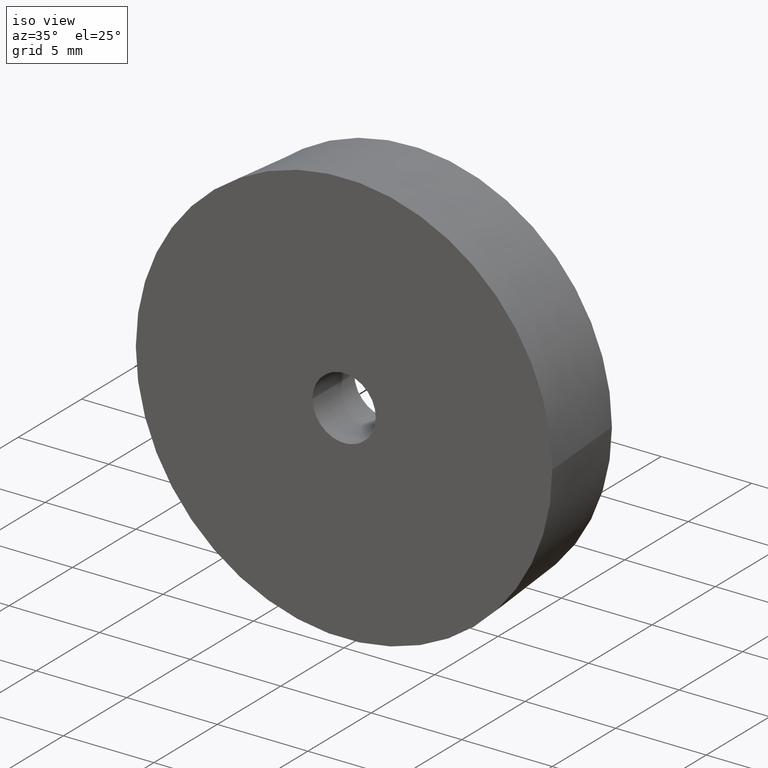
[diagram: clean part render]
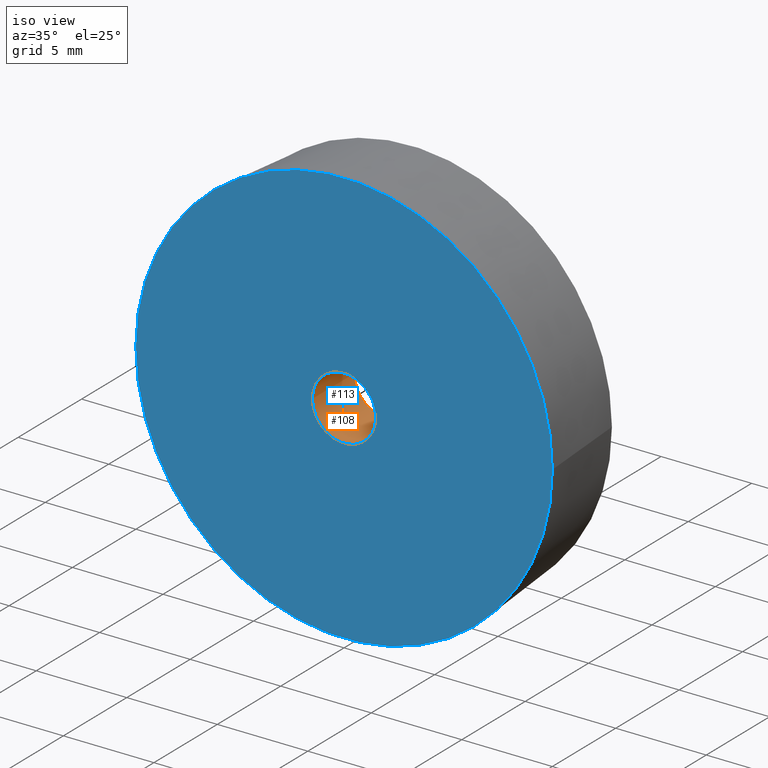
[diagram: same view with the hole feature highlighted: cylindrical wall and planar end face, labeled with their STEP entity ids]
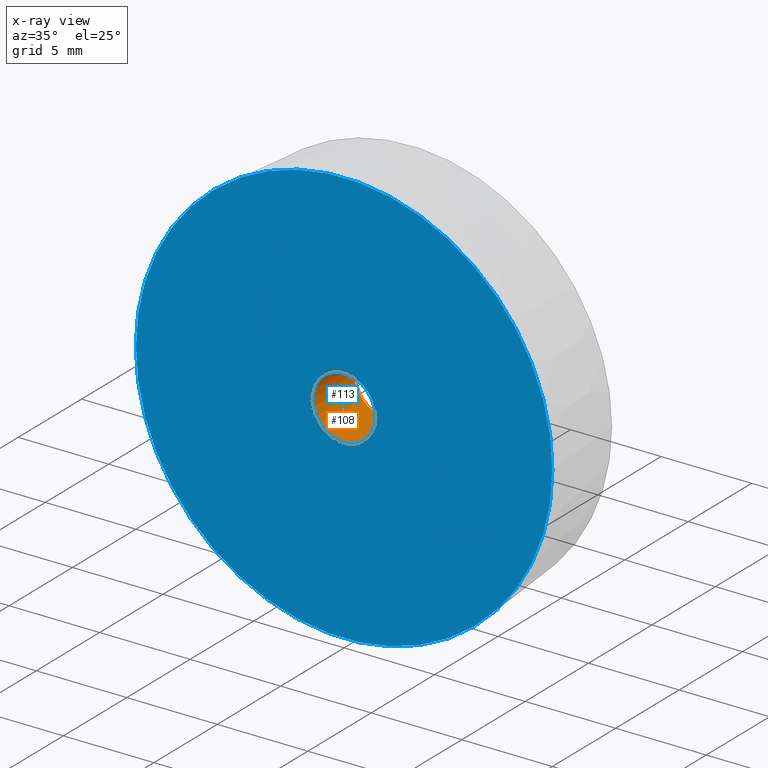
[diagram: x-ray of the same camera — body ghosted, the hole faces saturated]
A machine part, iso view. The highlighted faces form one hole feature of diameter 3.5 mm: the cylindrical wall (entity #108, orange) and its adjacent planar end face (entity #113, blue) — they share a circular edge in the B-rep.
The next image is the same camera in x-ray (body ghosted, the hole faces saturated) — the bore reads through the body.
Wall:
#15=CYLINDRICAL_SURFACE('',#123,1.75);
#25=FACE_BOUND('',#47,.T.);
#34=FACE_OUTER_BOUND('',#46,.T.);
#46=EDGE_LOOP('',(#91));
#47=EDGE_LOOP('',(#92));
#62=CIRCLE('',#124,1.75);
#63=CIRCLE('',#125,1.75);
#71=VERTEX_POINT('',#185);
#72=VERTEX_POINT('',#187);
#80=EDGE_CURVE('',#71,#71,#62,.T.);
#81=EDGE_CURVE('',#72,#72,#63,.T.);
#91=ORIENTED_EDGE('',*,*,#80,.F.);
#92=ORIENTED_EDGE('',*,*,#81,.F.);
#108=ADVANCED_FACE('',(#34,#25),#15,.F.);
#123=AXIS2_PLACEMENT_3D('',#184,#150,#151);
#124=AXIS2_PLACEMENT_3D('',#186,#152,#153);
#125=AXIS2_PLACEMENT_3D('',#188,#154,#155);
#150=DIRECTION('center_axis',(0.,1.,0.));
#151=DIRECTION('ref_axis',(-1.,0.,0.));
#152=DIRECTION('center_axis',(0.,1.,0.));
#153=DIRECTION('ref_axis',(-1.,0.,0.));
#154=DIRECTION('center_axis',(0.,-1.,0.));
#155=DIRECTION('ref_axis',(-1.,0.,0.));
#184=CARTESIAN_POINT('Origin',(0.,-29.8314050411388,0.));
#185=CARTESIAN_POINT('',(1.75,0.,-2.14313189850787E-16));
#186=CARTESIAN_POINT('Origin',(0.,0.,0.));
#187=CARTESIAN_POINT('',(-1.75,3.3,0.));
#188=CARTESIAN_POINT('Origin',(0.,3.3,0.));
End face:
#21=PLANE('',#133);
#30=FACE_BOUND('',#57,.T.);
#39=FACE_OUTER_BOUND('',#56,.T.);
#56=EDGE_LOOP('',(#101));
#57=EDGE_LOOP('',(#102));
#61=CIRCLE('',#122,11.5);
#62=CIRCLE('',#124,1.75);
#70=VERTEX_POINT('',#182);
#71=VERTEX_POINT('',#185);
#79=EDGE_CURVE('',#70,#70,#61,.T.);
#80=EDGE_CURVE('',#71,#71,#62,.T.);
#101=ORIENTED_EDGE('',*,*,#79,.F.);
#102=ORIENTED_EDGE('',*,*,#80,.T.);
#113=ADVANCED_FACE('',(#39,#30),#21,.F.);
#122=AXIS2_PLACEMENT_3D('',#183,#148,#149);
#124=AXIS2_PLACEMENT_3D('',#186,#152,#153);
#133=AXIS2_PLACEMENT_3D('',#199,#170,#171);
#148=DIRECTION('center_axis',(0.,1.,0.));
#149=DIRECTION('ref_axis',(1.,0.,0.));
#152=DIRECTION('center_axis',(0.,1.,0.));
#153=DIRECTION('ref_axis',(-1.,0.,0.));
#170=DIRECTION('center_axis',(0.,1.,0.));
#171=DIRECTION('ref_axis',(0.,0.,1.));
#182=CARTESIAN_POINT('',(11.5,0.,0.));
#183=CARTESIAN_POINT('Origin',(0.,0.,0.));
#185=CARTESIAN_POINT('',(1.75,0.,-2.14313189850787E-16));
#186=CARTESIAN_POINT('Origin',(0.,0.,0.));
#199=CARTESIAN_POINT('Origin',(0.,0.,0.));